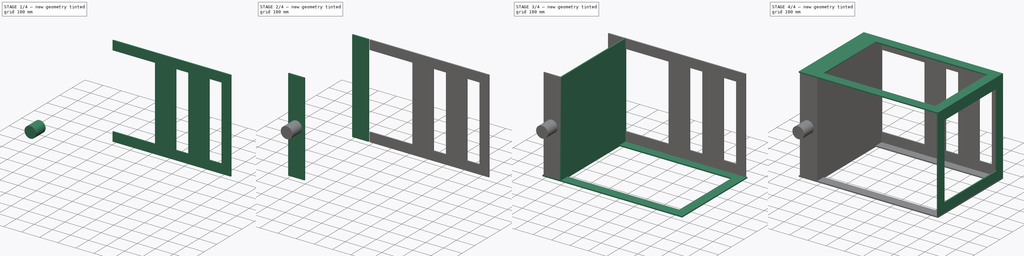
[diagram: build sequence overview — one tinted view per stage of 4, left to right]
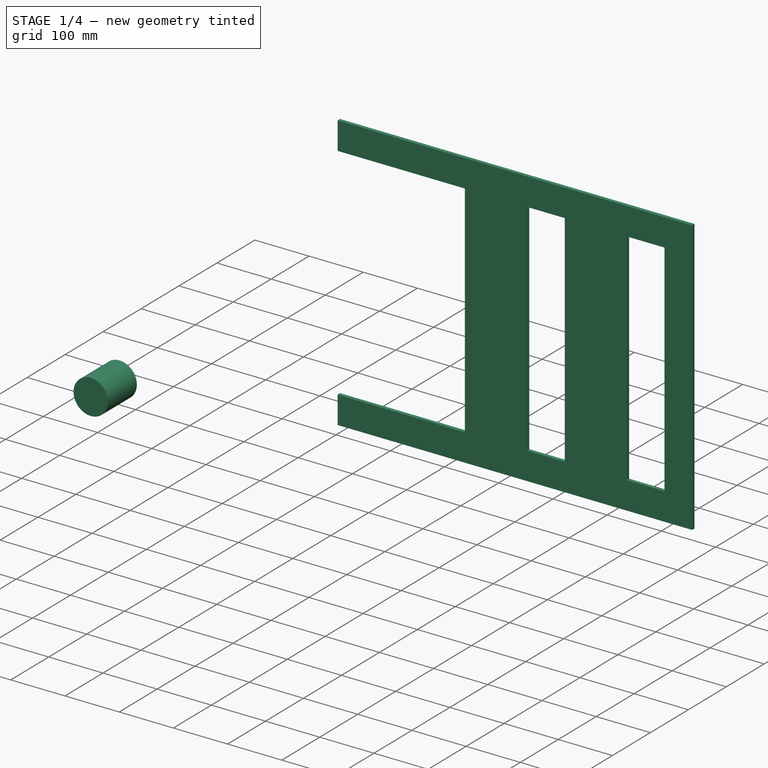
[diagram: stage 1 of 4 — iso view after this stage's code; geometry added in this stage tinted green]
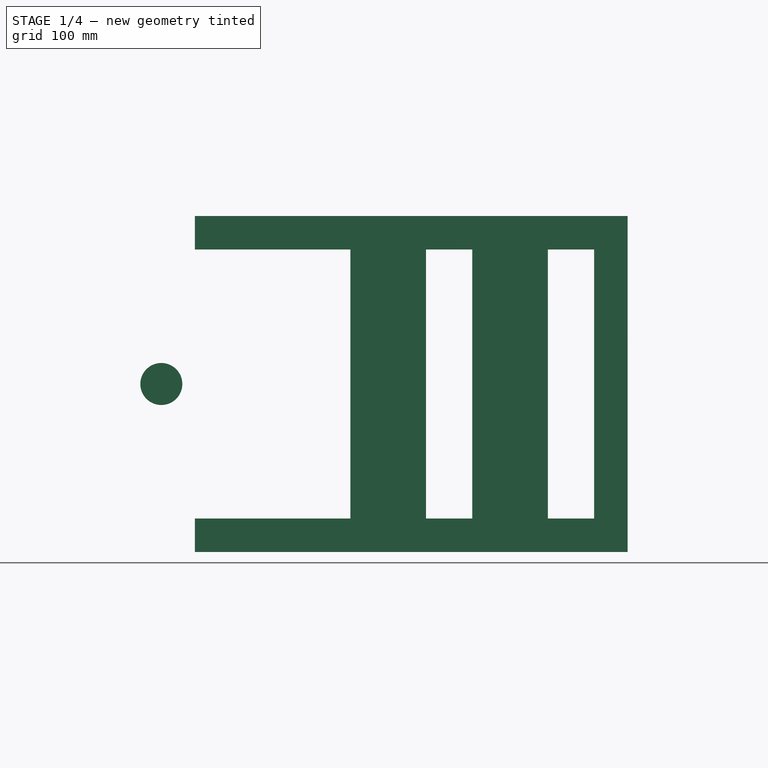
[diagram: stage 1 of 4 — front view after this stage's code; geometry added in this stage tinted green]
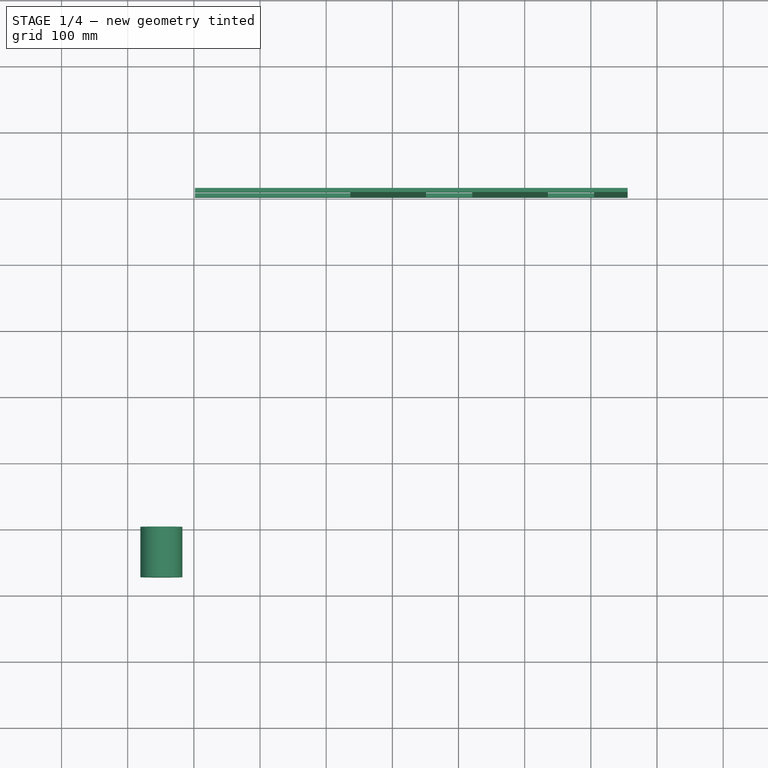
[diagram: stage 1 of 4 — top view after this stage's code; geometry added in this stage tinted green]
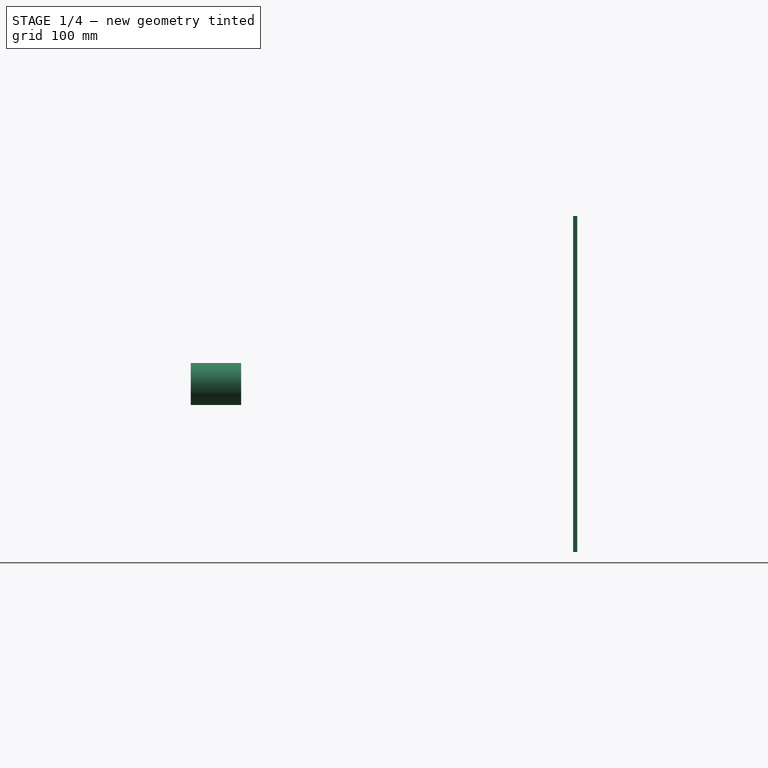
[diagram: stage 1 of 4 — right view after this stage's code; geometry added in this stage tinted green]
FCSTD DOCUMENT  (FreeCAD 0.16R6712 (Git))
Label: powercube
License: All rights reserved
LicenseURL: http://en.wikipedia.org/wiki/All_rights_reserved
objects: App::FeaturePython×36, Part::FeaturePython×8, Sketcher::SketchObject×4, PartDesign::Pad×4, Part::Cylinder×1, Part::Feature×1
note: 22 computed .brp shape members not serialized (recipe doc carries the construction recipe); baked Part::Feature solids carry a one-line shape summary decoded from their .brp

FEATURE [App::FeaturePython] planeConstraint14  # a2plus constraint (typed FeaturePython)
  Object1 = Clone005
  Object2 = Clone002
  SubElement1 = Face3
  SubElement2 = Face10
  Type = plane
  directionConstraint = 1
  offset = 0
FEATURE [App::FeaturePython] planeConstraint15  label="planeConstraint15__tank end 20x20"  # a2plus constraint (typed FeaturePython)
  Object1 = Clone005
  Object2 = powercubeframeside01_01
  SubElement1 = Face4
  SubElement2 = Face2
  Type = plane
  directionConstraint = 1
  offset = 0
FEATURE [App::FeaturePython] planeConstraint15_mirror  label="planeConstraint15__Clone of tank top/bottom002"  # a2plus constraint (typed FeaturePython)
  Object1 = Clone005
  Object2 = powercubeframeside01_01
  SubElement1 = Face4
  SubElement2 = Face2
  Type = plane
  directionConstraint = 1
  offset = 0
FEATURE [App::FeaturePython] planeConstraint16  label="planeConstraint16__tank end 20x20"  # a2plus constraint (typed FeaturePython)
  Object1 = Clone005
  Object2 = powercubeframeside01_01
  SubElement1 = Face5
  SubElement2 = Face4
  Type = plane
  directionConstraint = 0
  offset = 0
FEATURE [App::FeaturePython] planeConstraint16_mirror  label="planeConstraint16__Clone of tank top/bottom002"  # a2plus constraint (typed FeaturePython)
  Object1 = Clone005
  Object2 = powercubeframeside01_01
  SubElement1 = Face5
  SubElement2 = Face4
  Type = plane
  directionConstraint = 0
  offset = 0
FEATURE [Part::Cylinder] Cylinder  label="tank cap"
  Angle = 360
  Height = 76.2
  Placement = pos=(50.8,-76.2,254) rot=(-1,0,0;1.5708rad)
  Radius = 31.75
FEATURE [App::FeaturePython] planeConstraint17  # a2plus constraint (typed FeaturePython)
  Object1 = Cylinder
  Object2 = Clone004
  SubElement1 = Face2
  SubElement2 = Face6
  Type = plane
  directionConstraint = 1
  offset = 0
FEATURE [Sketcher::SketchObject] Sketch003  label="Bottom mount"
  Placement = pos=(0,0,914.4) rot=(1,0,0;1.5708rad)
  sketch-geometry (23):
    g0: LineSegment StartX=-327.025 StartY=254 StartZ=0 EndX=327.025 EndY=254 EndZ=0
    g1: LineSegment StartX=327.025 StartY=254 StartZ=0 EndX=327.025 EndY=-254 EndZ=0
    g2: LineSegment StartX=327.025 StartY=-254 StartZ=0 EndX=-327.025 EndY=-254 EndZ=0
    g3: LineSegment StartX=206.375 StartY=203.2 StartZ=0 EndX=276.225 EndY=203.2 EndZ=0
    g4: LineSegment StartX=276.225 StartY=203.2 StartZ=0 EndX=276.225 EndY=-203.2 EndZ=0
    g5: LineSegment StartX=276.225 StartY=-203.2 StartZ=0 EndX=206.375 EndY=-203.2 EndZ=0
    g6: LineSegment StartX=206.375 StartY=-203.2 StartZ=0 EndX=206.375 EndY=203.2 EndZ=0
    g7: LineSegment StartX=-327.025 StartY=203.2 StartZ=0 EndX=-92.075 EndY=203.2 EndZ=0
    g8: LineSegment StartX=-92.075 StartY=203.2 StartZ=0 EndX=-92.075 EndY=-203.2 EndZ=0
    g9: LineSegment StartX=-92.075 StartY=-203.2 StartZ=0 EndX=-327.025 EndY=-203.2 EndZ=0
    g10: LineSegment [constr] StartX=276.225 StartY=203.2 StartZ=0 EndX=327.025 EndY=203.2 EndZ=0
    g11: LineSegment [constr] StartX=276.225 StartY=203.2 StartZ=0 EndX=276.225 EndY=254 EndZ=0
    g12: LineSegment [constr] StartX=276.225 StartY=-203.2 StartZ=0 EndX=276.225 EndY=-254 EndZ=0
    g13: LineSegment [constr] StartX=-92.075 StartY=-203.2 StartZ=0 EndX=-92.075 EndY=-254 EndZ=0
    g14: LineSegment StartX=22.225 StartY=203.2 StartZ=0 EndX=92.075 EndY=203.2 EndZ=0
    g15: LineSegment StartX=92.075 StartY=203.2 StartZ=0 EndX=92.075 EndY=-203.2 EndZ=0
    g16: LineSegment StartX=92.075 StartY=-203.2 StartZ=0 EndX=22.225 EndY=-203.2 EndZ=0
    g17: LineSegment StartX=22.225 StartY=-203.2 StartZ=0 EndX=22.225 EndY=203.2 EndZ=0
    g18: LineSegment [constr] StartX=92.075 StartY=203.2 StartZ=0 EndX=92.075 EndY=254 EndZ=0
    g19: LineSegment [constr] StartX=206.375 StartY=203.2 StartZ=0 EndX=92.075 EndY=203.2 EndZ=0
    g20: LineSegment [constr] StartX=22.225 StartY=203.2 StartZ=0 EndX=-92.075 EndY=203.2 EndZ=0
    g21: LineSegment StartX=-327.025 StartY=-254 StartZ=0 EndX=-327.025 EndY=-203.2 EndZ=0
    g22: LineSegment StartX=-327.025 StartY=254 StartZ=0 EndX=-327.025 EndY=203.2 EndZ=0
  constraints (68):
    c: Coincident(g0,g1)
    c: Coincident(g1,g2)
    c: Horizontal(g0)
    c: Vertical(g1)
    c: Symmetric(g2,g0,g-1)
    c: Equal(g2,g0)
    c: DistanceY(g2,g0) = 508
    c: DistanceX(g2,g2) = 654.05
    c: Coincident(g3,g4)
    c: Coincident(g4,g5)
    c: Coincident(g5,g6)
    c: Coincident(g6,g3)
    c: Horizontal(g5)
    c: Vertical(g4)
    c: Vertical(g6)
    c: Coincident(g7,g8)
    c: Coincident(g8,g9)
    c: Horizontal(g7)
    c: Horizontal(g9)
    c: Vertical(g8)
    c: Equal(g4,g6)
    c: Equal(g3,g5)
    c: Coincident(g10,g3)
    c: PointOnObject(g10,g1)
    c: Horizontal(g10)
    c: Coincident(g11,g3)
    c: PointOnObject(g11,g0)
    c: Vertical(g11)
    c: Coincident(g12,g4)
    c: PointOnObject(g12,g2)
    c: Vertical(g12)
    c: Coincident(g13,g8)
    c: PointOnObject(g13,g2)
    c: Vertical(g13)
    c: Equal(g7,g9)
    c: Equal(g8,g6)
    c: Equal(g13,g12)
    c: Equal(g12,g10)
    c: Equal(g10,g11)
    c: DistanceY(g13,g13) = 50.8
    c: Coincident(g14,g15)
    c: Coincident(g15,g16)
    c: Coincident(g16,g17)
    c: Coincident(g17,g14)
    c: Horizontal(g16)
    c: Vertical(g15)
    c: Equal(g14,g16)
    c: Equal(g16,g5)
    c: Equal(g15,g17)
    c: Equal(g17,g6)
    c: Coincident(g18,g14)
    c: PointOnObject(g18,g0)
    c: Vertical(g18)
    c: Equal(g18,g11)
    c: Coincident(g19,g3)
    c: Coincident(g19,g14)
    c: Coincident(g20,g14)
    c: Coincident(g20,g7)
    c: Equal(g20,g19)
    c: DistanceX(g19,g19) = 114.3
    c: DistanceX(g3,g3) = 69.85
    c: DistanceX(g7,g7) = 234.95
    c: Coincident(g21,g2)
    c: Coincident(g21,g9)
    c: Coincident(g22,g0)
    c: Coincident(g22,g7)
    c: Vertical(g21)
    c: Vertical(g22)
FEATURE [PartDesign::Pad] Pad003  label="Bottom Mount plate"
  Length = 6.35
  Length2 = 100
  Placement = pos=(0,0,914.4) rot=(1,0,0;1.5708rad)
  Sketch = -> Sketch003
  Type = 0
FEATURE [Part::FeaturePython] Clone006  label="Clone of Bottom Mount plate"  # Draft clone (typed FeaturePython)
  Objects = -> [Pad003]
  Placement = pos=(428.625,508,254) rot=(1,0,0;1.5708rad)
  Scale = (1,1,1)
FEATURE [App::FeaturePython] planeConstraint18  label="planeConstraint18__tank end 20x20"  # a2plus constraint (typed FeaturePython)
  Object1 = Clone006
  Object2 = powercubeframeside01_01
  SubElement1 = Face17
  SubElement2 = Face4
  Type = plane
  directionConstraint = 1
  offset = 0
FEATURE [App::FeaturePython] planeConstraint18_mirror  label="planeConstraint18__Clone of Bottom Mount plate"  # a2plus constraint (typed FeaturePython)
  Object1 = Clone006
  Object2 = powercubeframeside01_01
  SubElement1 = Face17
  SubElement2 = Face4
  Type = plane
  directionConstraint = 1
  offset = 0
FEATURE [App::FeaturePython] planeConstraint19  # a2plus constraint (typed FeaturePython)
  Object1 = Clone006
  Object2 = Clone003
  SubElement1 = Face4
  SubElement2 = Face2
  Type = plane
  directionConstraint = 1
  offset = 0
FEATURE [App::FeaturePython] planeConstraint20  # a2plus constraint (typed FeaturePython)
  Object1 = Clone006
  Object2 = Clone002
  SubElement1 = Face3
  SubElement2 = Face10
  Type = plane
  directionConstraint = 0
  offset = 0
FEATURE [Part::Feature] Fusion001  label="Oil Cooler Hayden 1284"
  Placement = pos=(300.14,417.45,13.97) rot=(0,0,-1;1.5708rad)
  shape: bbox 635.2 x 431.8 x 38.1 mm, 28 faces (baked)
FEATURE [App::FeaturePython] planeConstraint21  label="oil cooler to frame bottom"  # a2plus constraint (typed FeaturePython)
  Object1 = Fusion001
  Object2 = Clone006
  SubElement1 = Face15
  SubElement2 = Face18
  Type = plane
  directionConstraint = 0
  offset = 0
FEATURE [App::FeaturePython] planeConstraint22  label="cooler to frame side"  # a2plus constraint (typed FeaturePython)
  Object1 = Fusion001
  Object2 = Clone002
  SubElement1 = Face13
  SubElement2 = Face10
  Type = plane
  directionConstraint = 0
  offset = 1.27
FEATURE [App::FeaturePython] planeConstraint23  label="cooler to frame motor end"  # a2plus constraint (typed FeaturePython)
  Object1 = Fusion001
  Object2 = Clone001
  SubElement1 = Face12
  SubElement2 = Face9
  Type = plane
  directionConstraint = 0
  offset = -57.15
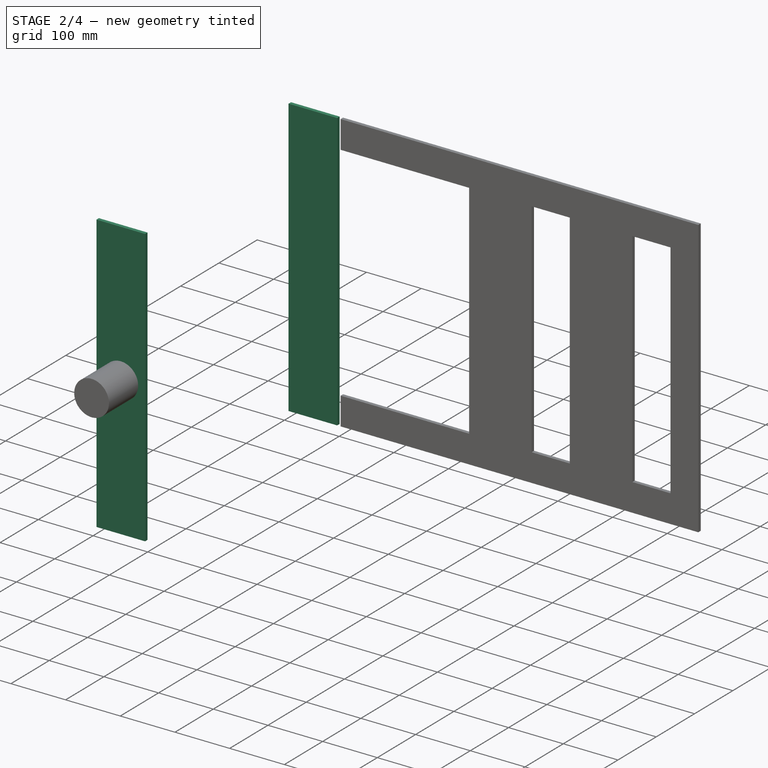
[diagram: stage 2 of 4 — iso view after this stage's code; geometry added in this stage tinted green]
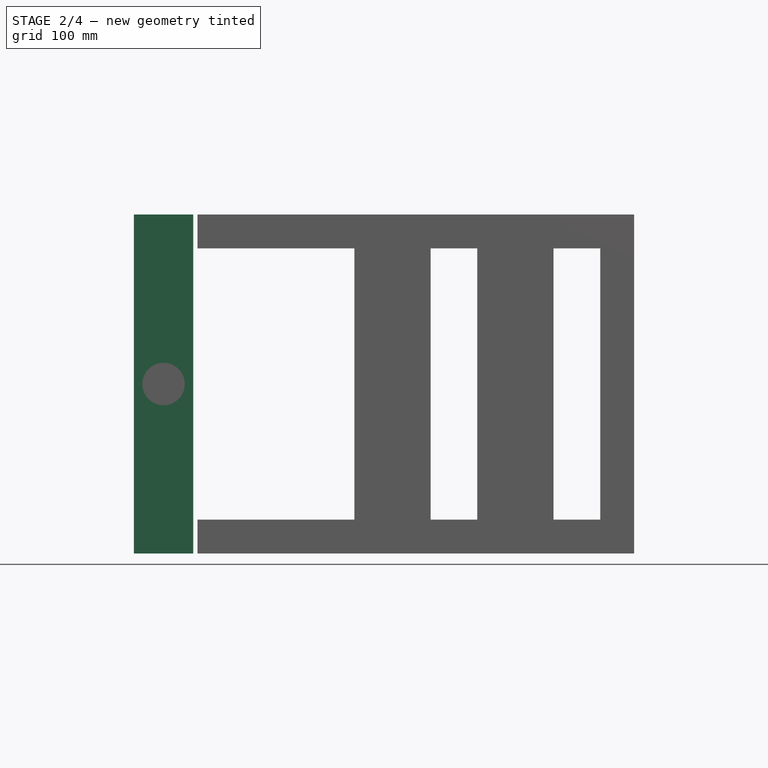
[diagram: stage 2 of 4 — front view after this stage's code; geometry added in this stage tinted green]
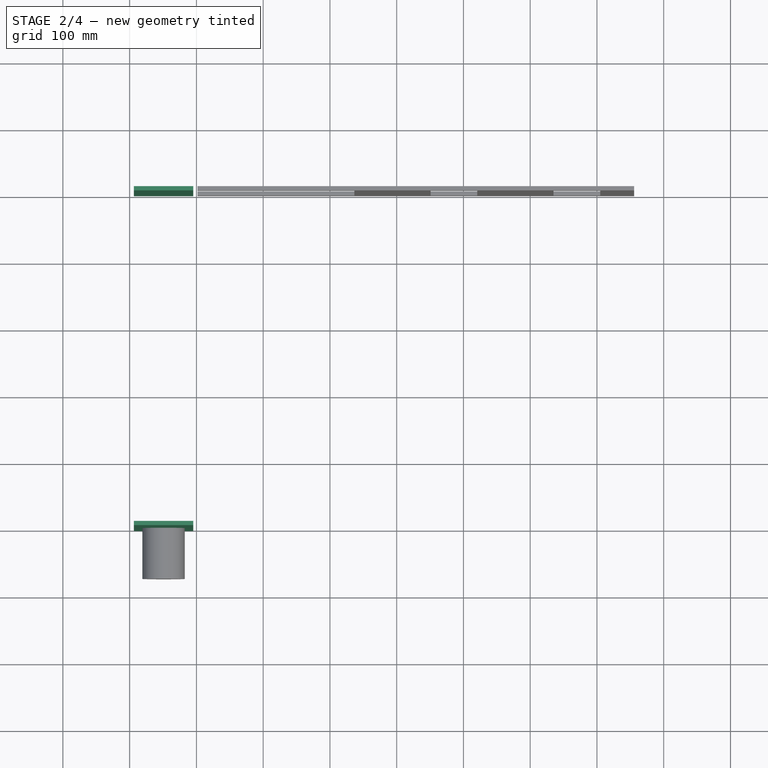
[diagram: stage 2 of 4 — top view after this stage's code; geometry added in this stage tinted green]
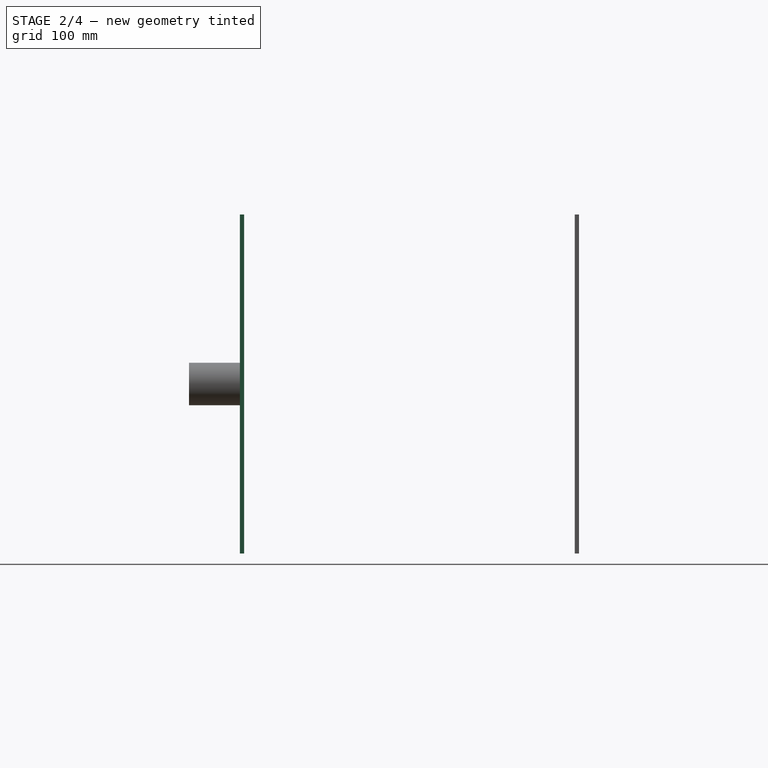
[diagram: stage 2 of 4 — right view after this stage's code; geometry added in this stage tinted green]
FEATURE [App::FeaturePython] planeConstraint10  # a2plus constraint (typed FeaturePython)
  Object1 = Clone003
  Object2 = Clone
  SubElement1 = Face2
  SubElement2 = Face8
  Type = plane
  directionConstraint = 0
  offset = 0
FEATURE [Sketcher::SketchObject] Sketch002  label="tank top/bottom"
  Placement = pos=(0,304.8,914.4) rot=(1,0,0;1.5708rad)
  sketch-geometry (4):
    g0: LineSegment StartX=-44.45 StartY=254 StartZ=0 EndX=44.45 EndY=254 EndZ=0
    g1: LineSegment StartX=44.45 StartY=254 StartZ=0 EndX=44.45 EndY=-254 EndZ=0
    g2: LineSegment StartX=44.45 StartY=-254 StartZ=0 EndX=-44.45 EndY=-254 EndZ=0
    g3: LineSegment StartX=-44.45 StartY=-254 StartZ=0 EndX=-44.45 EndY=254 EndZ=0
  constraints (13):
    c: Coincident(g0,g1)
    c: Coincident(g1,g2)
    c: Coincident(g2,g3)
    c: Coincident(g3,g0)
    c: Horizontal(g0)
    c: Horizontal(g2)
    c: Vertical(g1)
    c: Vertical(g3)
    c: DistanceX(g0,g0) = 88.9  'tank depth'
    c: DistanceY(g3,g3) = 508  'tank width'
    c: Equal(g3,g1)
    c: Equal(g0,g2)
    c: Symmetric(g0,g1,g-1)
FEATURE [PartDesign::Pad] Pad002  label="tank top/bottom001"
  Length = 6.35
  Length2 = 100
  Placement = pos=(0,304.8,914.4) rot=(1,0,0;1.5708rad)
  Sketch = -> Sketch002
  Type = 0
FEATURE [Part::FeaturePython] Clone004  label="Clone of tank top/bottom001"  # Draft clone (typed FeaturePython)
  Objects = -> [Pad002]
  Placement = pos=(50.8,6.35,254) rot=(1,0,0;1.5708rad)
  Scale = (1,1,1)
FEATURE [App::FeaturePython] planeConstraint11  # a2plus constraint (typed FeaturePython)
  Object1 = Clone004
  Object2 = Clone002
  SubElement1 = Face3
  SubElement2 = Face10
  Type = plane
  directionConstraint = 1
  offset = 0
FEATURE [App::FeaturePython] planeConstraint12  label="planeConstraint12__tank end 20x20"  # a2plus constraint (typed FeaturePython)
  Object1 = Clone004
  Object2 = powercubeframeside01_01
  SubElement1 = Face4
  SubElement2 = Face2
  Type = plane
  directionConstraint = 1
  offset = 0
FEATURE [App::FeaturePython] planeConstraint12_mirror  label="planeConstraint12__Clone of tank top/bottom001"  # a2plus constraint (typed FeaturePython)
  Object1 = Clone004
  Object2 = powercubeframeside01_01
  SubElement1 = Face4
  SubElement2 = Face2
  Type = plane
  directionConstraint = 1
  offset = 0
FEATURE [App::FeaturePython] planeConstraint13  label="planeConstraint13__tank end 20x20"  # a2plus constraint (typed FeaturePython)
  Object1 = Clone004
  Object2 = powercubeframeside01_01
  SubElement1 = Face6
  SubElement2 = Face3
  Type = plane
  directionConstraint = 0
  offset = 0
FEATURE [App::FeaturePython] planeConstraint13_mirror  label="planeConstraint13__Clone of tank top/bottom001"  # a2plus constraint (typed FeaturePython)
  Object1 = Clone004
  Object2 = powercubeframeside01_01
  SubElement1 = Face6
  SubElement2 = Face3
  Type = plane
  directionConstraint = 0
  offset = 0
FEATURE [Part::FeaturePython] Clone005  label="Clone of tank top/bottom002"  # Draft clone (typed FeaturePython)
  Objects = -> [Pad002]
  Placement = pos=(50.8,508,254) rot=(1,0,0;1.5708rad)
  Scale = (1,1,1)
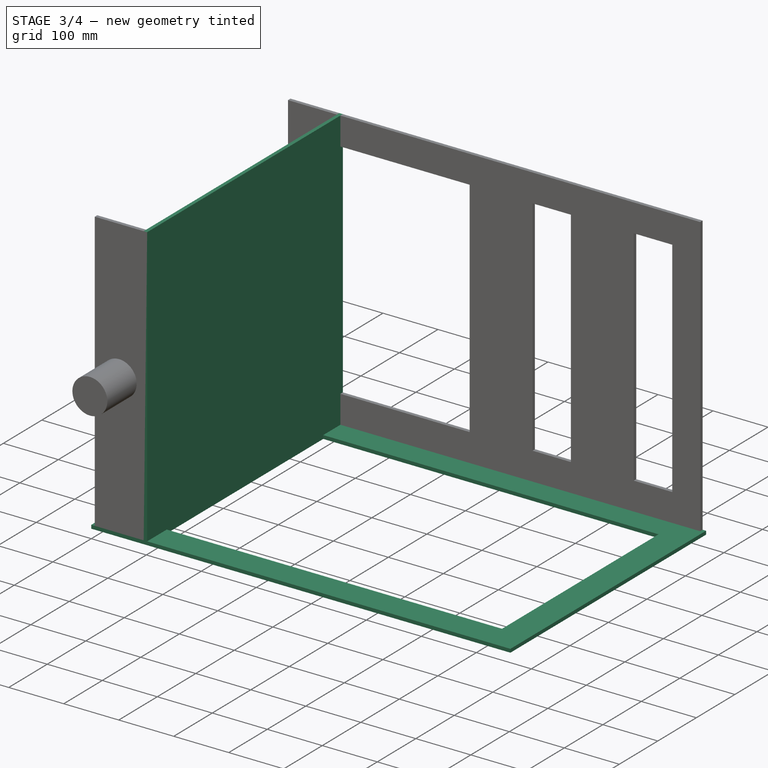
[diagram: stage 3 of 4 — iso view after this stage's code; geometry added in this stage tinted green]
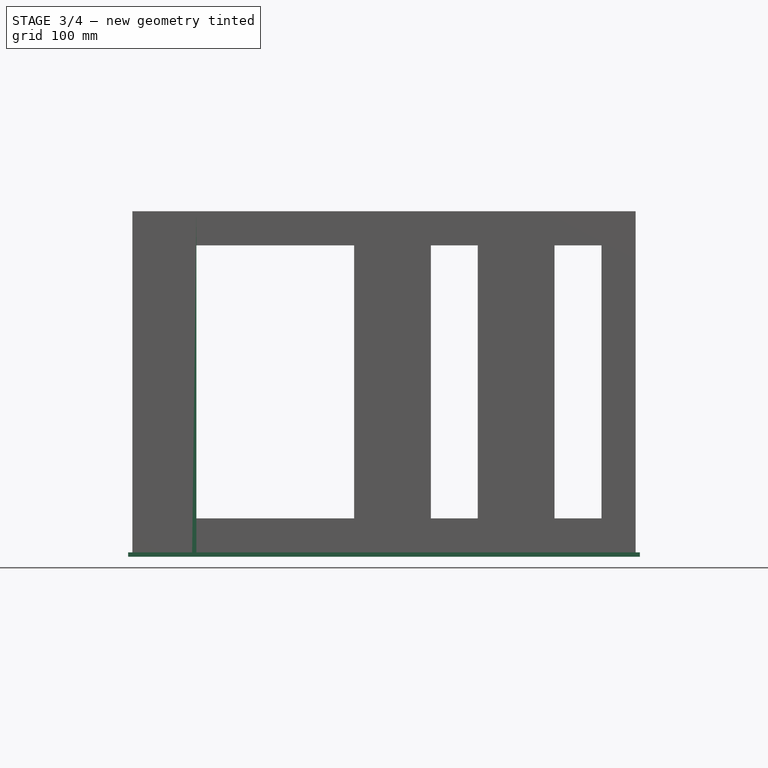
[diagram: stage 3 of 4 — front view after this stage's code; geometry added in this stage tinted green]
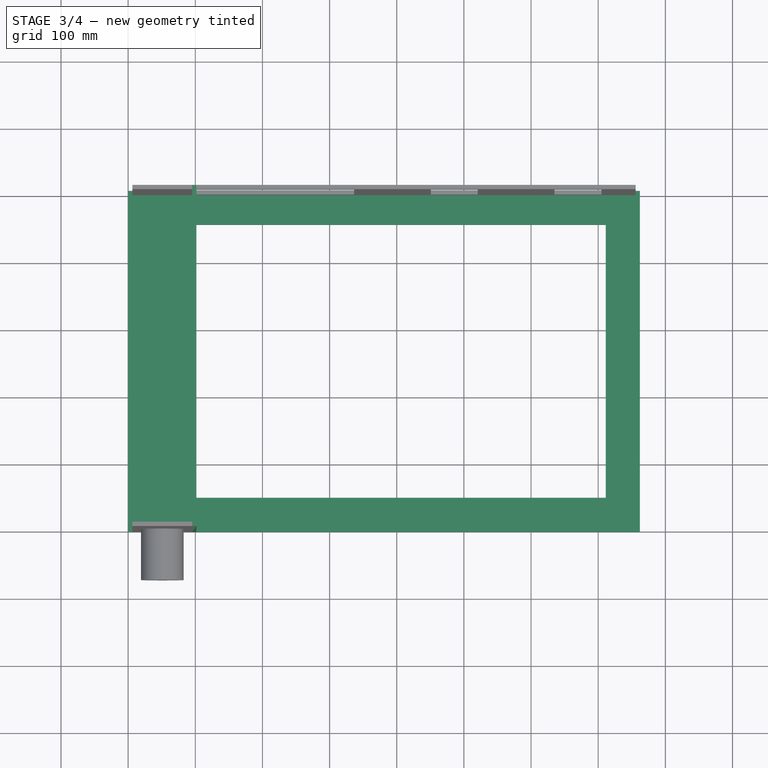
[diagram: stage 3 of 4 — top view after this stage's code; geometry added in this stage tinted green]
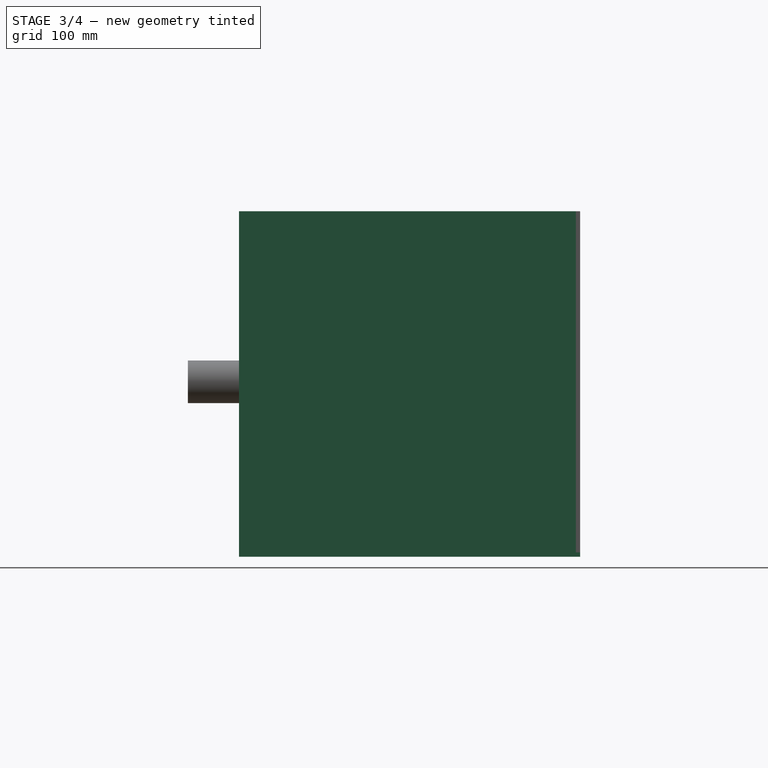
[diagram: stage 3 of 4 — right view after this stage's code; geometry added in this stage tinted green]
FEATURE [Sketcher::SketchObject] Sketch  label="20x30in"
  Placement = pos=(914.4,762,914.4) rot=(0,0,1;0rad)
  sketch-geometry (8):
    g0: LineSegment StartX=-381 StartY=254 StartZ=0 EndX=381 EndY=254 EndZ=0
    g1: LineSegment StartX=381 StartY=254 StartZ=0 EndX=381 EndY=-254 EndZ=0
    g2: LineSegment StartX=381 StartY=-254 StartZ=0 EndX=-381 EndY=-254 EndZ=0
    g3: LineSegment StartX=-381 StartY=-254 StartZ=0 EndX=-381 EndY=254 EndZ=0
    g4: LineSegment StartX=-279.4 StartY=-203.2 StartZ=0 EndX=330.2 EndY=-203.2 EndZ=0
    g5: LineSegment StartX=330.2 StartY=-203.2 StartZ=0 EndX=330.2 EndY=203.2 EndZ=0
    g6: LineSegment StartX=330.2 StartY=203.2 StartZ=0 EndX=-279.4 EndY=203.2 EndZ=0
    g7: LineSegment StartX=-279.4 StartY=203.2 StartZ=0 EndX=-279.4 EndY=-203.2 EndZ=0
  constraints (26):
    c: Coincident(g0,g1)
    c: Coincident(g1,g2)
    c: Coincident(g2,g3)
    c: Coincident(g3,g0)
    c: Horizontal(g0)
    c: Horizontal(g2)
    c: Vertical(g1)
    c: Vertical(g3)
    c: Equal(g3,g1)
    c: Equal(g0,g2)
    c: Symmetric(g0,g1,g-1)
    c: Coincident(g4,g5)
    c: Coincident(g5,g6)
    c: Coincident(g6,g7)
    c: Coincident(g7,g4)
    c: Horizontal(g4)
    c: Horizontal(g6)
    c: Vertical(g7)
    c: Equal(g7,g5)
    c: Equal(g6,g4)
    c: DistanceY(g3,g3) = 508
    c: DistanceX(g2,g2) = 762
    c: DistanceY(g7,g7) = 406.4
    c: DistanceX(g4,g1) = 50.8
    c: DistanceX(g2,g4) = 101.6
    c: Symmetric(g4,g5,g-1)
FEATURE [PartDesign::Pad] Pad  label="long side"
  Length = 6.35
  Length2 = 100
  Placement = pos=(914.4,762,914.4) rot=(0,0,1;0rad)
  Sketch = -> Sketch
  Type = 0
FEATURE [Part::FeaturePython] powercubeframeside01_01  label="tank end 20x20"  # a2plus imported part (geometry in sourceFile) (typed FeaturePython)
  fixedPosition = true
  sourceFile = <userpath>/Documents/Power Cube v17.08/powercubeframeside01.fcstd
  timeLastImport = 1.51107e+09
  updateColors = true
FEATURE [App::FeaturePython] planeConstraint01  label="planeConstraint01__tank end 20x20"  # a2plus constraint (typed FeaturePython)
  Object1 = Clone
  Object2 = powercubeframeside01_01
  SubElement1 = Face9
  SubElement2 = Face6
  Type = plane
  directionConstraint = 0
  offset = 0
FEATURE [App::FeaturePython] planeConstraint01_mirror  label="planeConstraint01__Clone of long side"  # a2plus constraint (typed FeaturePython)
  Object1 = Clone
  Object2 = powercubeframeside01_01
  SubElement1 = Face9
  SubElement2 = Face6
  Type = plane
  directionConstraint = 0
  offset = 0
FEATURE [App::FeaturePython] planeConstraint02  label="planeConstraint02__tank end 20x20"  # a2plus constraint (typed FeaturePython)
  Object1 = Clone
  Object2 = powercubeframeside01_01
  SubElement1 = Face1
  SubElement2 = Face4
  Type = plane
  directionConstraint = 0
  offset = 0
FEATURE [App::FeaturePython] planeConstraint02_mirror  label="planeConstraint02__Clone of long side"  # a2plus constraint (typed FeaturePython)
  Object1 = Clone
  Object2 = powercubeframeside01_01
  SubElement1 = Face1
  SubElement2 = Face4
  Type = plane
  directionConstraint = 0
  offset = 0
FEATURE [App::FeaturePython] planeConstraint03  label="planeConstraint03__tank end 20x20"  # a2plus constraint (typed FeaturePython)
  Object1 = Clone
  Object2 = powercubeframeside01_01
  SubElement1 = Face4
  SubElement2 = Face1
  Type = plane
  directionConstraint = 0
  offset = 0
FEATURE [App::FeaturePython] planeConstraint03_mirror  label="planeConstraint03__Clone of long side"  # a2plus constraint (typed FeaturePython)
  Object1 = Clone
  Object2 = powercubeframeside01_01
  SubElement1 = Face4
  SubElement2 = Face1
  Type = plane
  directionConstraint = 0
  offset = 0
FEATURE [App::FeaturePython] planeConstraint04  label="planeConstraint04__tank end 20x20"  # a2plus constraint (typed FeaturePython)
  Object1 = Clone001
  Object2 = powercubeframeside01_01
  SubElement1 = Face3
  SubElement2 = Face5
  Type = plane
  directionConstraint = 1
  offset = 0
FEATURE [App::FeaturePython] planeConstraint04_mirror  label="planeConstraint04__Clone of engine end side"  # a2plus constraint (typed FeaturePython)
  Object1 = Clone001
  Object2 = powercubeframeside01_01
  SubElement1 = Face3
  SubElement2 = Face5
  Type = plane
  directionConstraint = 1
  offset = 0
FEATURE [App::FeaturePython] planeConstraint05  label="planeConstraint05__tank end 20x20"  # a2plus constraint (typed FeaturePython)
  Object1 = Clone001
  Object2 = powercubeframeside01_01
  SubElement1 = Face2
  SubElement2 = Face4
  Type = plane
  directionConstraint = 0
  offset = 0
FEATURE [App::FeaturePython] planeConstraint05_mirror  label="planeConstraint05__Clone of engine end side"  # a2plus constraint (typed FeaturePython)
  Object1 = Clone001
  Object2 = powercubeframeside01_01
  SubElement1 = Face2
  SubElement2 = Face4
  Type = plane
  directionConstraint = 0
  offset = 0
FEATURE [App::FeaturePython] planeConstraint06  # a2plus constraint (typed FeaturePython)
  Object1 = Clone001
  Object2 = Clone
  SubElement1 = Face10
  SubElement2 = Face2
  Type = plane
  directionConstraint = 0
  offset = 0
FEATURE [Part::FeaturePython] Clone002  label="Clone of long side001"  # Draft clone (typed FeaturePython)
  Objects = -> [Pad]
  Placement = pos=(381,254,-6.35) rot=(0,0,1;0rad)
  Scale = (1,1,1)
FEATURE [App::FeaturePython] planeConstraint09  label="planeConstraint09__tank end 20x20"  # a2plus constraint (typed FeaturePython)
  Object1 = Clone002
  Object2 = powercubeframeside01_01
  SubElement1 = Face3
  SubElement2 = Face3
  Type = plane
  directionConstraint = 1
  offset = 0
FEATURE [App::FeaturePython] planeConstraint09_mirror  label="planeConstraint09__Clone of long side001"  # a2plus constraint (typed FeaturePython)
  Object1 = Clone002
  Object2 = powercubeframeside01_01
  SubElement1 = Face3
  SubElement2 = Face3
  Type = plane
  directionConstraint = 1
  offset = 0
FEATURE [App::FeaturePython] planeConstraint07  label="planeConstraint07__tank end 20x20"  # a2plus constraint (typed FeaturePython)
  Object1 = Clone002
  Object2 = powercubeframeside01_01
  SubElement1 = Face10
  SubElement2 = Face5
  Type = plane
  directionConstraint = 0
  offset = 0
FEATURE [App::FeaturePython] planeConstraint07_mirror  label="planeConstraint07__Clone of long side001"  # a2plus constraint (typed FeaturePython)
  Object1 = Clone002
  Object2 = powercubeframeside01_01
  SubElement1 = Face10
  SubElement2 = Face5
  Type = plane
  directionConstraint = 0
  offset = 0
FEATURE [App::FeaturePython] planeConstraint08  label="planeConstraint08__tank end 20x20"  # a2plus constraint (typed FeaturePython)
  Object1 = Clone002
  Object2 = powercubeframeside01_01
  SubElement1 = Face4
  SubElement2 = Face1
  Type = plane
  directionConstraint = 0
  offset = 0
FEATURE [App::FeaturePython] planeConstraint08_mirror  label="planeConstraint08__Clone of long side001"  # a2plus constraint (typed FeaturePython)
  Object1 = Clone002
  Object2 = powercubeframeside01_01
  SubElement1 = Face4
  SubElement2 = Face1
  Type = plane
  directionConstraint = 0
  offset = 0
FEATURE [Part::FeaturePython] Clone003  label="Clone of tank end 20x20"  # Draft clone (typed FeaturePython)
  Objects = -> [powercubeframeside01_01]
  Placement = pos=(95.25,0,0) rot=(0,0,1;0rad)
  Scale = (1,1,1)
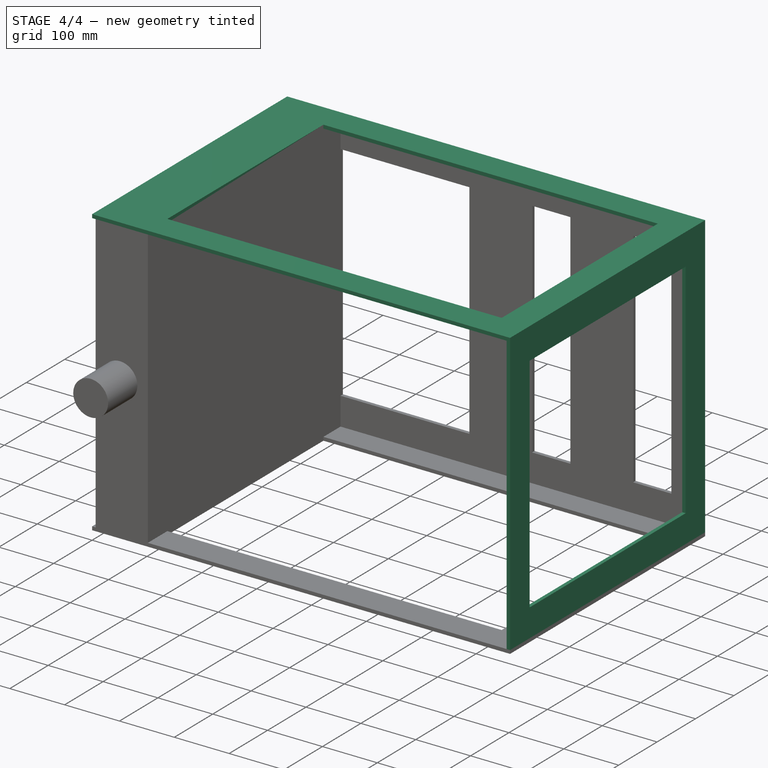
[diagram: stage 4 of 4 — iso view after this stage's code; geometry added in this stage tinted green]
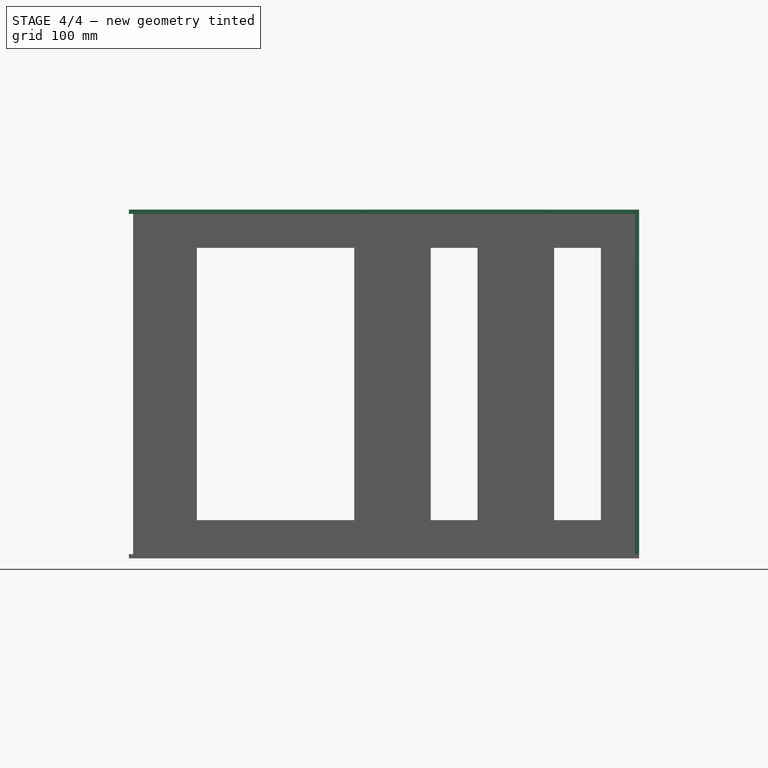
[diagram: stage 4 of 4 — front view after this stage's code; geometry added in this stage tinted green]
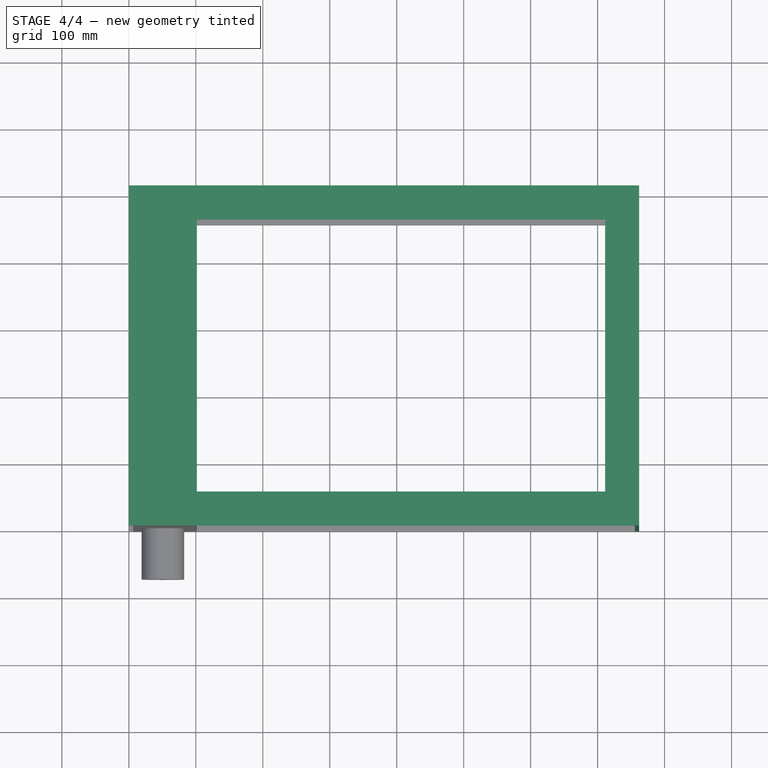
[diagram: stage 4 of 4 — top view after this stage's code; geometry added in this stage tinted green]
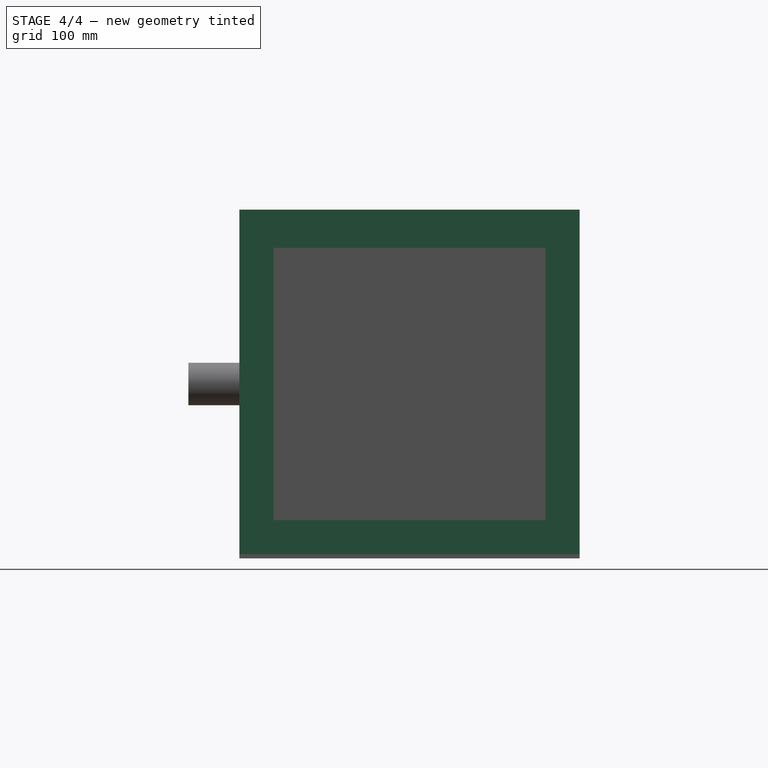
[diagram: stage 4 of 4 — right view after this stage's code; geometry added in this stage tinted green]
FEATURE [Sketcher::SketchObject] Sketch001  label="20x20in"
  Placement = pos=(914.4,1422.4,914.4) rot=(0.57735,0.57735,0.57735;2.0944rad)
  sketch-geometry (8):
    g0: LineSegment StartX=-254 StartY=254 StartZ=0 EndX=254 EndY=254 EndZ=0
    g1: LineSegment StartX=254 StartY=254 StartZ=0 EndX=254 EndY=-254 EndZ=0
    g2: LineSegment StartX=254 StartY=-254 StartZ=0 EndX=-254 EndY=-254 EndZ=0
    g3: LineSegment StartX=-254 StartY=-254 StartZ=0 EndX=-254 EndY=254 EndZ=0
    g4: LineSegment StartX=-203.2 StartY=203.2 StartZ=0 EndX=203.2 EndY=203.2 EndZ=0
    g5: LineSegment StartX=203.2 StartY=203.2 StartZ=0 EndX=203.2 EndY=-203.2 EndZ=0
    g6: LineSegment StartX=203.2 StartY=-203.2 StartZ=0 EndX=-203.2 EndY=-203.2 EndZ=0
    g7: LineSegment StartX=-203.2 StartY=-203.2 StartZ=0 EndX=-203.2 EndY=203.2 EndZ=0
  constraints (26):
    c: Coincident(g0,g1)
    c: Coincident(g1,g2)
    c: Coincident(g2,g3)
    c: Coincident(g3,g0)
    c: Horizontal(g0)
    c: Horizontal(g2)
    c: Vertical(g1)
    c: Vertical(g3)
    c: Equal(g0,g3)
    c: Equal(g3,g2)
    c: Equal(g2,g1)
    c: DistanceX(g0,g0) = 508  'outer edge'
    c: Symmetric(g2,g0,g-1)
    c: Coincident(g4,g5)
    c: Coincident(g5,g6)
    c: Coincident(g6,g7)
    c: Coincident(g7,g4)
    c: Horizontal(g4)
    c: Horizontal(g6)
    c: Vertical(g5)
    c: Vertical(g7)
    c: Equal(g4,g7)
    c: Equal(g7,g6)
    c: Equal(g6,g5)
    c: DistanceX(g4,g4) = 406.4  'inner edge'
    c: Symmetric(g4,g5,g-1)
FEATURE [PartDesign::Pad] Pad001  label="engine end side"
  Length = 6.35
  Length2 = 100
  Placement = pos=(914.4,1422.4,914.4) rot=(0.57735,0.57735,0.57735;2.0944rad)
  Sketch = -> Sketch001
  Type = 0
FEATURE [Part::FeaturePython] Clone  label="Clone of long side"  # Draft clone (typed FeaturePython)
  Objects = -> [Pad]
  Placement = pos=(381,254,508) rot=(0,0,1;0rad)
  Scale = (1,1,1)
FEATURE [Part::FeaturePython] Clone001  label="Clone of engine end side"  # Draft clone (typed FeaturePython)
  Objects = -> [Pad001]
  Placement = pos=(755.65,254,254) rot=(0.57735,0.57735,0.57735;2.0944rad)
  Scale = (1,1,1)
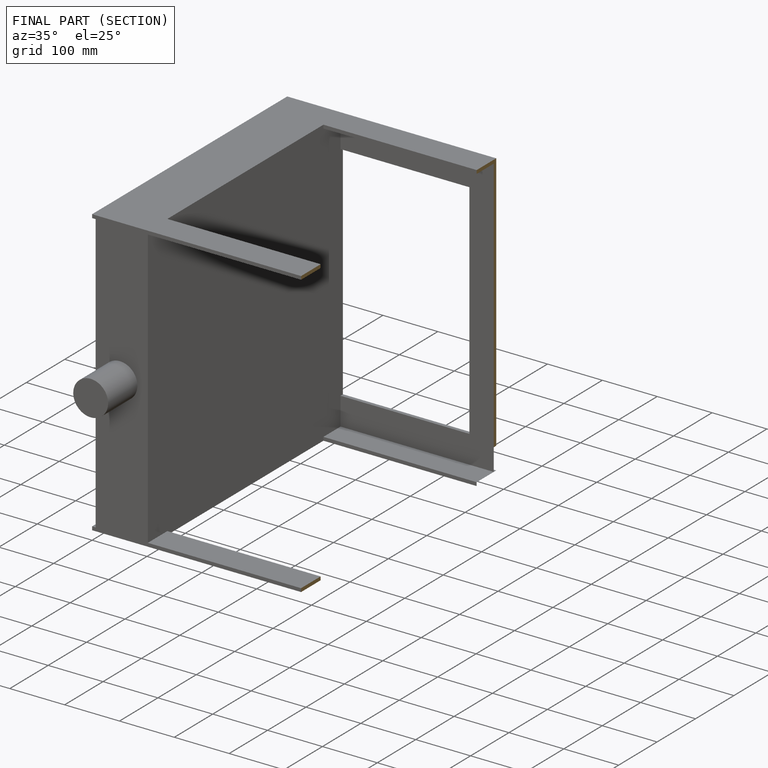
[diagram: finished part — half-section view (interior)]
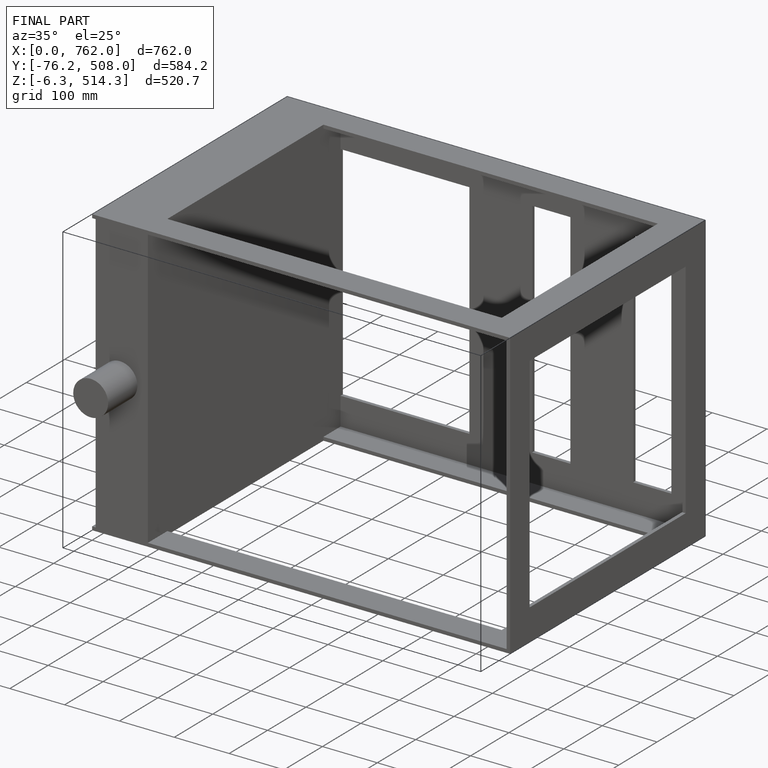
[diagram: finished part — iso view with bounding-box wireframe]
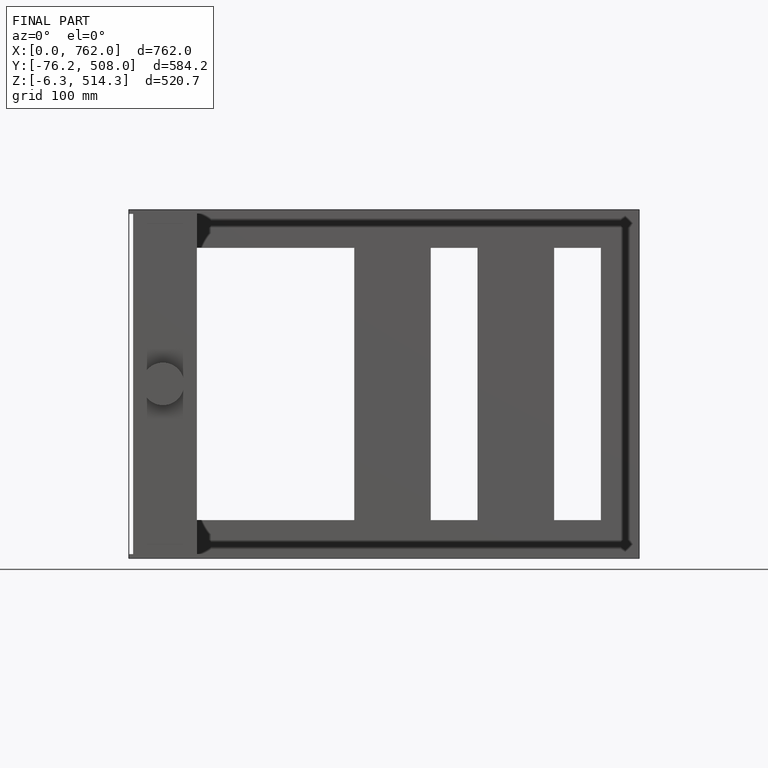
[diagram: finished part — front view with bounding-box wireframe]
